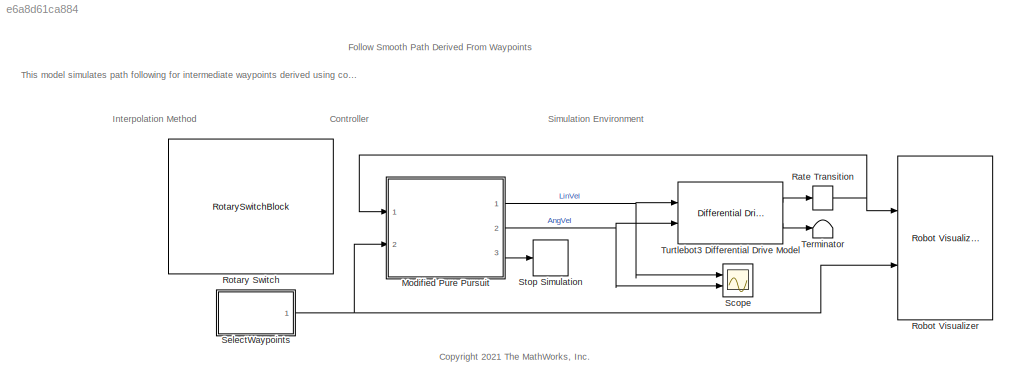
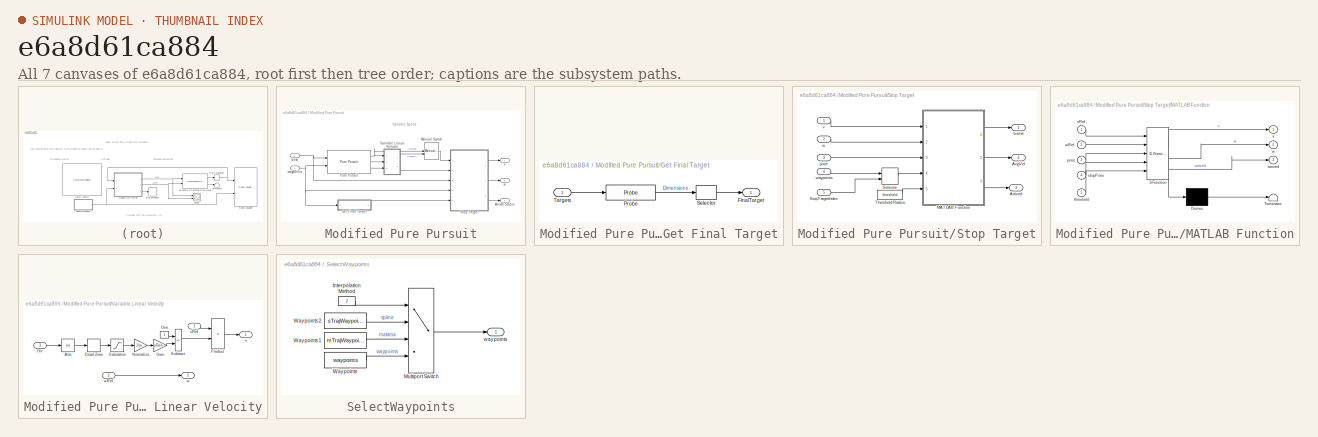
[diagram: thumbnail index - all 7 canvases of the model, root first then tree order]
MODEL slx_e6a8d61ca884
KIND model
CONFIG AbsTol = auto
CONFIG EnableMultiTasking = on
CONFIG FixedStep = 0.01
CONFIG MaxStep = auto
CONFIG MinStep = auto
CONFIG PreLoadFcn = load('turtleBotMazeMap.mat')\nInterpolatePath\n
CONFIG RelTol = 1e-3
CONFIG SampleTimeConstraint = Unconstrained
CONFIG SolverName = VariableStepAuto
CONFIG StartTime = 0.0
CONFIG StopTime = inf
BLOCK [SubSystem] Modified Pure Pursuit
  Ports = [2, 3]
  RequestExecContextInheritance = off
BLOCK [Outport] Modified Pure Pursuit/Arrival Status
  Port = 3
  VectorParamsAs1DForOutWhenUnconnected = off
BLOCK [SubSystem] Modified Pure Pursuit/Get Final Target
  Ports = [1, 1]
  RequestExecContextInheritance = off
BLOCK [Outport] Modified Pure Pursuit/Get Final Target/FinalTarget
BLOCK [Probe] Modified Pure Pursuit/Get Final Target/Probe
  Ports = [1, 1]
  ProbeComplexSignal = off
  ProbeSampleTime = off
  ProbeSignalDimensions = on
  ProbeWidth = off
BLOCK [Selector] Modified Pure Pursuit/Get Final Target/Selector
  IndexOptions = Index vector (dialog)
  Indices = 1
  InputPortWidth = 2
  OutputSizes = 1
  Ports = [1, 1]
BLOCK [Inport] Modified Pure Pursuit/Get Final Target/Targets
BLOCK [ManualSwitch] Modified Pure Pursuit/Manual Switch
  CurrentSetting = 0
  NameLocation = top
BLOCK [Reference] Modified Pure Pursuit/Pure Pursuit  REF=robotalgslib/Pure Pursuit
  Ports = [2, 3]
  SourceBlock = robotalgslib/Pure Pursuit
  SourceProductBaseCode = NV,RO
  SourceType = nav.slalgs.internal.PurePursuit
BLOCK [SubSystem] Modified Pure Pursuit/Stop Target
  Ports = [5, 3]
  RequestExecContextInheritance = off
BLOCK [Outport] Modified Pure Pursuit/Stop Target/AngVel
  Port = 2
BLOCK [Outport] Modified Pure Pursuit/Stop Target/Arrived
  Port = 3
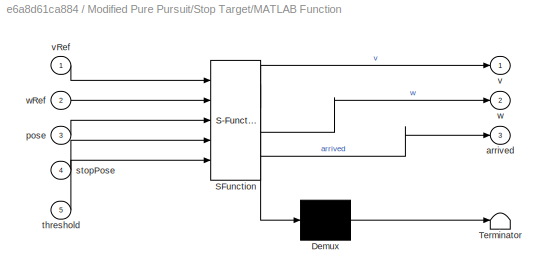
BLOCK [SubSystem] Modified Pure Pursuit/Stop Target/MATLAB Function
  ErrorFcn = Stateflow.Translate.translate
  PermitHierarchicalResolution = ExplicitOnly
  Ports = [5, 3]
  RequestExecContextInheritance = off
  SFBlockType = MATLAB Function
  TreatAsAtomicUnit = on
BLOCK [Demux] Modified Pure Pursuit/Stop Target/MATLAB Function/ Demux 
  Outputs = 1
  Ports = [1, 1]
BLOCK [S-Function] Modified Pure Pursuit/Stop Target/MATLAB Function/ SFunction 
  EnableBusSupport = on
  FunctionName = sf_sfun
  PortCounts = [5 4]
  Ports = [5, 4]
  SFcnIsStateOwnerBlock = off
  SFunctionDeploymentMode = off
  Tag = Stateflow S-Function 2
BLOCK [Terminator] Modified Pure Pursuit/Stop Target/MATLAB Function/ Terminator 
BLOCK [Outport] Modified Pure Pursuit/Stop Target/MATLAB Function/arrived
  Port = 3
BLOCK [Inport] Modified Pure Pursuit/Stop Target/MATLAB Function/pose
  Port = 3
BLOCK [Inport] Modified Pure Pursuit/Stop Target/MATLAB Function/stopPose
  Port = 4
BLOCK [Inport] Modified Pure Pursuit/Stop Target/MATLAB Function/threshold
  Port = 5
BLOCK [Outport] Modified Pure Pursuit/Stop Target/MATLAB Function/v
BLOCK [Inport] Modified Pure Pursuit/Stop Target/MATLAB Function/vRef
BLOCK [Outport] Modified Pure Pursuit/Stop Target/MATLAB Function/w
  Port = 2
BLOCK [Inport] Modified Pure Pursuit/Stop Target/MATLAB Function/wRef
  Port = 2
BLOCK [Selector] Modified Pure Pursuit/Stop Target/Selector
  IndexOptions = Index vector (port),Index vector (dialog)
  Indices = [1 3],[1 2]
  InputPortWidth = 3
  NumberOfDimensions = 2
  OutputSizes = 1,1
  Ports = [2, 1]
BLOCK [Inport] Modified Pure Pursuit/Stop Target/StopTargetIndex
  Port = 5
BLOCK [Constant] Modified Pure Pursuit/Stop Target/Threshold Radius
  Value = threshold
BLOCK [Outport] Modified Pure Pursuit/Stop Target/linVel
BLOCK [Inport] Modified Pure Pursuit/Stop Target/pose
  Port = 3
BLOCK [Inport] Modified Pure Pursuit/Stop Target/v
BLOCK [Inport] Modified Pure Pursuit/Stop Target/w
  Port = 2
BLOCK [Inport] Modified Pure Pursuit/Stop Target/waypoints
  Port = 4
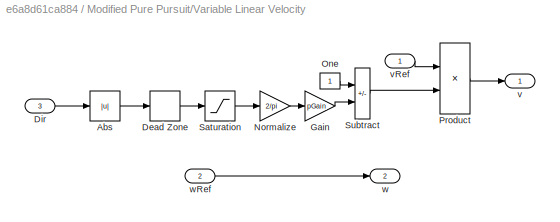
BLOCK [SubSystem] Modified Pure Pursuit/Variable Linear Velocity
  Ports = [3, 2]
  RequestExecContextInheritance = off
BLOCK [Abs] Modified Pure Pursuit/Variable Linear Velocity/Abs
  SaturateOnIntegerOverflow = off
BLOCK [DeadZone] Modified Pure Pursuit/Variable Linear Velocity/Dead Zone
  LowerValue = -deadZone
  UpperValue = deadZone
BLOCK [Inport] Modified Pure Pursuit/Variable Linear Velocity/Dir
  Port = 3
BLOCK [Gain] Modified Pure Pursuit/Variable Linear Velocity/Gain
  Gain = pGain
BLOCK [Gain] Modified Pure Pursuit/Variable Linear Velocity/Normalize
  Gain = 2/pi
BLOCK [Constant] Modified Pure Pursuit/Variable Linear Velocity/One
  OutDataTypeStr = Inherit: Inherit via back propagation
BLOCK [Product] Modified Pure Pursuit/Variable Linear Velocity/Product
  Ports = [2, 1]
BLOCK [Saturate] Modified Pure Pursuit/Variable Linear Velocity/Saturation
  LowerLimit = 0
  UpperLimit = pi/2
BLOCK [Sum] Modified Pure Pursuit/Variable Linear Velocity/Subtract
  IconShape = rectangular
  Inputs = +-
  Ports = [2, 1]
BLOCK [Outport] Modified Pure Pursuit/Variable Linear Velocity/v
  NameLocation = top
BLOCK [Inport] Modified Pure Pursuit/Variable Linear Velocity/vRef
  NameLocation = top
BLOCK [Outport] Modified Pure Pursuit/Variable Linear Velocity/w
  Port = 2
BLOCK [Inport] Modified Pure Pursuit/Variable Linear Velocity/wRef
  Port = 2
BLOCK [Inport] Modified Pure Pursuit/pose
BLOCK [Outport] Modified Pure Pursuit/v
  VectorParamsAs1DForOutWhenUnconnected = off
BLOCK [Outport] Modified Pure Pursuit/w
  Port = 2
  VectorParamsAs1DForOutWhenUnconnected = off
BLOCK [Inport] Modified Pure Pursuit/waypoints
  Port = 2
BLOCK [RateTransition] Rate Transition
  OutPortSampleTime = 0.02
BLOCK [Reference] Robot Visualizer  REF=mobileRoboticsLib/Environments/Robot Visualizer
  Ports = [2]
  Priority = 99
  SourceBlock = mobileRoboticsLib/Environments/Robot Visualizer
  SourceProductName = Mobile Robotics Simulation Toolbox
  SourceType = Visualizer2D
BLOCK [RotarySwitchBlock] Rotary Switch
  LabelPosition = Bottom
BLOCK [Scope] Scope
  Floating = off
  NumInputPorts = 2
  Ports = [2]
  ScopeSpecificationString = Simulink.scopes.TimeScopeBlockCfg('CurrentConfiguration', extmgr.ConfigurationSet(extmgr.Configuration('Core','General UI',true),extmgr.Configuration('Core','Source UI',true),extmgr.Configuration('Sources','WiredSimulink',true),extmgr.Configuration('Visuals','Time Domain',true,'SerializedDisplays',{struct('MinYLimReal','-0.125','MaxYLimReal','1.125','YLabelReal','','MinYLimMag','0.00000','MaxYLimM...<+2027ch>
BLOCK [SubSystem] SelectWaypoints
  Ports = [0, 1]
  RequestExecContextInheritance = off
BLOCK [Constant] SelectWaypoints/Interpolation Method
  NameLocation = top
  Value = 2
BLOCK [MultiPortSwitch] SelectWaypoints/Multiport Switch
  AllowDiffInputSizes = on
  InputSameDT = off
  Ports = [4, 1]
  SaturateOnIntegerOverflow = off
BLOCK [Constant] SelectWaypoints/Waypoints
  SampleTime = 0.02
  Value = waypoints
BLOCK [Constant] SelectWaypoints/Waypoints1
  SampleTime = 0.02
  Value = mTrajWaypoints
BLOCK [Constant] SelectWaypoints/Waypoints2
  SampleTime = 0.02
  Value = sTrajWaypoints
BLOCK [Outport] SelectWaypoints/waypoints
BLOCK [Stop] Stop Simulation
BLOCK [Terminator] Terminator
BLOCK [Reference] Turtlebot3 Differential Drive Model  REF=robotmobilelib/Differential Drive Kinematic Model
  Ports = [2, 2]
  SourceBlock = robotmobilelib/Differential Drive Kinematic Model
  SourceProductBaseCode = RO
  SourceType = Differential Drive Kinematic Model
ANNOTATION (root): Follow Smooth Path Derived From Waypoints
ANNOTATION (root): <copyright redacted>
ANNOTATION (root): This model simulates path following for intermediate waypoints derived using common interpolation algorithms .
ANNOTATION (root): Controller
ANNOTATION (root): Interpolation Method
ANNOTATION (root): Simulation Environment
ANNOTATION Modified Pure Pursuit: Variable Speed
LINE Modified Pure Pursuit/Get Final Target/Probe:1 -> Modified Pure Pursuit/Get Final Target/Selector:1
LINE Modified Pure Pursuit/Get Final Target/Selector:1 -> Modified Pure Pursuit/Get Final Target/FinalTarget:1
LINE Modified Pure Pursuit/Get Final Target/Targets:1 -> Modified Pure Pursuit/Get Final Target/Probe:1
LINE Modified Pure Pursuit/Get Final Target:1 -> Modified Pure Pursuit/Stop Target:5
LINE Modified Pure Pursuit/Manual Switch:1 -> Modified Pure Pursuit/Stop Target:1
NET Modified Pure Pursuit/Pure Pursuit:1 -> Modified Pure Pursuit/Manual Switch:1, Modified Pure Pursuit/Variable Linear Velocity:1
LINE Modified Pure Pursuit/Pure Pursuit:2 -> Modified Pure Pursuit/Variable Linear Velocity:2
LINE Modified Pure Pursuit/Pure Pursuit:3 -> Modified Pure Pursuit/Variable Linear Velocity:3
LINE Modified Pure Pursuit/Stop Target/MATLAB Function:1 -> Modified Pure Pursuit/Stop Target/linVel:1
LINE Modified Pure Pursuit/Stop Target/MATLAB Function:2 -> Modified Pure Pursuit/Stop Target/AngVel:1
LINE Modified Pure Pursuit/Stop Target/MATLAB Function:3 -> Modified Pure Pursuit/Stop Target/Arrived:1
LINE Modified Pure Pursuit/Stop Target/Selector:1 -> Modified Pure Pursuit/Stop Target/MATLAB Function:4
LINE Modified Pure Pursuit/Stop Target/StopTargetIndex:1 -> Modified Pure Pursuit/Stop Target/Selector:2
LINE Modified Pure Pursuit/Stop Target/Threshold Radius:1 -> Modified Pure Pursuit/Stop Target/MATLAB Function:5
LINE Modified Pure Pursuit/Stop Target/pose:1 -> Modified Pure Pursuit/Stop Target/MATLAB Function:3
LINE Modified Pure Pursuit/Stop Target/v:1 -> Modified Pure Pursuit/Stop Target/MATLAB Function:1
LINE Modified Pure Pursuit/Stop Target/w:1 -> Modified Pure Pursuit/Stop Target/MATLAB Function:2
LINE Modified Pure Pursuit/Stop Target/waypoints:1 -> Modified Pure Pursuit/Stop Target/Selector:1
LINE Modified Pure Pursuit/Stop Target:1 -> Modified Pure Pursuit/v:1
LINE Modified Pure Pursuit/Stop Target:2 -> Modified Pure Pursuit/w:1
LINE Modified Pure Pursuit/Stop Target:3 -> Modified Pure Pursuit/Arrival Status:1
LINE Modified Pure Pursuit/Variable Linear Velocity/Abs:1 -> Modified Pure Pursuit/Variable Linear Velocity/Dead Zone:1
LINE Modified Pure Pursuit/Variable Linear Velocity/Dead Zone:1 -> Modified Pure Pursuit/Variable Linear Velocity/Saturation:1
LINE Modified Pure Pursuit/Variable Linear Velocity/Dir:1 -> Modified Pure Pursuit/Variable Linear Velocity/Abs:1
LINE Modified Pure Pursuit/Variable Linear Velocity/Gain:1 -> Modified Pure Pursuit/Variable Linear Velocity/Subtract:2
LINE Modified Pure Pursuit/Variable Linear Velocity/Normalize:1 -> Modified Pure Pursuit/Variable Linear Velocity/Gain:1
LINE Modified Pure Pursuit/Variable Linear Velocity/One:1 -> Modified Pure Pursuit/Variable Linear Velocity/Subtract:1
LINE Modified Pure Pursuit/Variable Linear Velocity/Product:1 -> Modified Pure Pursuit/Variable Linear Velocity/v:1
LINE Modified Pure Pursuit/Variable Linear Velocity/Saturation:1 -> Modified Pure Pursuit/Variable Linear Velocity/Normalize:1
LINE Modified Pure Pursuit/Variable Linear Velocity/Subtract:1 -> Modified Pure Pursuit/Variable Linear Velocity/Product:2
LINE Modified Pure Pursuit/Variable Linear Velocity/vRef:1 -> Modified Pure Pursuit/Variable Linear Velocity/Product:1
LINE Modified Pure Pursuit/Variable Linear Velocity/wRef:1 -> Modified Pure Pursuit/Variable Linear Velocity/w:1
LINE Modified Pure Pursuit/Variable Linear Velocity:1 -> Modified Pure Pursuit/Manual Switch:2
LINE Modified Pure Pursuit/Variable Linear Velocity:2 -> Modified Pure Pursuit/Stop Target:2
NET Modified Pure Pursuit/pose:1 -> Modified Pure Pursuit/Pure Pursuit:1, Modified Pure Pursuit/Stop Target:3
NET Modified Pure Pursuit/waypoints:1 -> Modified Pure Pursuit/Get Final Target:1, Modified Pure Pursuit/Pure Pursuit:2, Modified Pure Pursuit/Stop Target:4
NET Modified Pure Pursuit:1 -> Scope:1, Turtlebot3 Differential Drive Model:1
NET Modified Pure Pursuit:2 -> Scope:2, Turtlebot3 Differential Drive Model:2
LINE Modified Pure Pursuit:3 -> Stop Simulation:1
NET Rate Transition:1 -> Modified Pure Pursuit:1, Robot Visualizer:1
LINE SelectWaypoints/Interpolation Method:1 -> SelectWaypoints/Multiport Switch:1
LINE SelectWaypoints/Multiport Switch:1 -> SelectWaypoints/waypoints:1
LINE SelectWaypoints/Waypoints1:1 -> SelectWaypoints/Multiport Switch:3
LINE SelectWaypoints/Waypoints2:1 -> SelectWaypoints/Multiport Switch:2
LINE SelectWaypoints/Waypoints:1 -> SelectWaypoints/Multiport Switch:4
NET SelectWaypoints:1 -> Modified Pure Pursuit:2, Robot Visualizer:2
LINE Turtlebot3 Differential Drive Model:1 -> Rate Transition:1
LINE Turtlebot3 Differential Drive Model:2 -> Terminator:1
note: NET lines group one-source signal fan-out (src -> all destinations, sorted); 1:1 wires keep LINE
CHART Modified Pure Pursuit/Stop Target/MATLAB Function states=1 transitions=1
  STATE_LABEL 'eML_blk_kernel()'
  STATE_LABEL 'SCRIPT:\nfunction [v, w, arrived] = arrivalThreshold(vRef, wRef, pose, stopPose, threshold)\n\neucDist = sqrt((stopPose(1)-pose(1))^2 + (stopPose(2)-pose(2))^2);\n\nif eucDist > threshold\n    v = vRef;\n    w = wRef;\n    arrived = 0;\nelse\n    v = 0;\n    w = 0;\n    arrived = 1;\nend'
CHART  states=0 transitions=0
